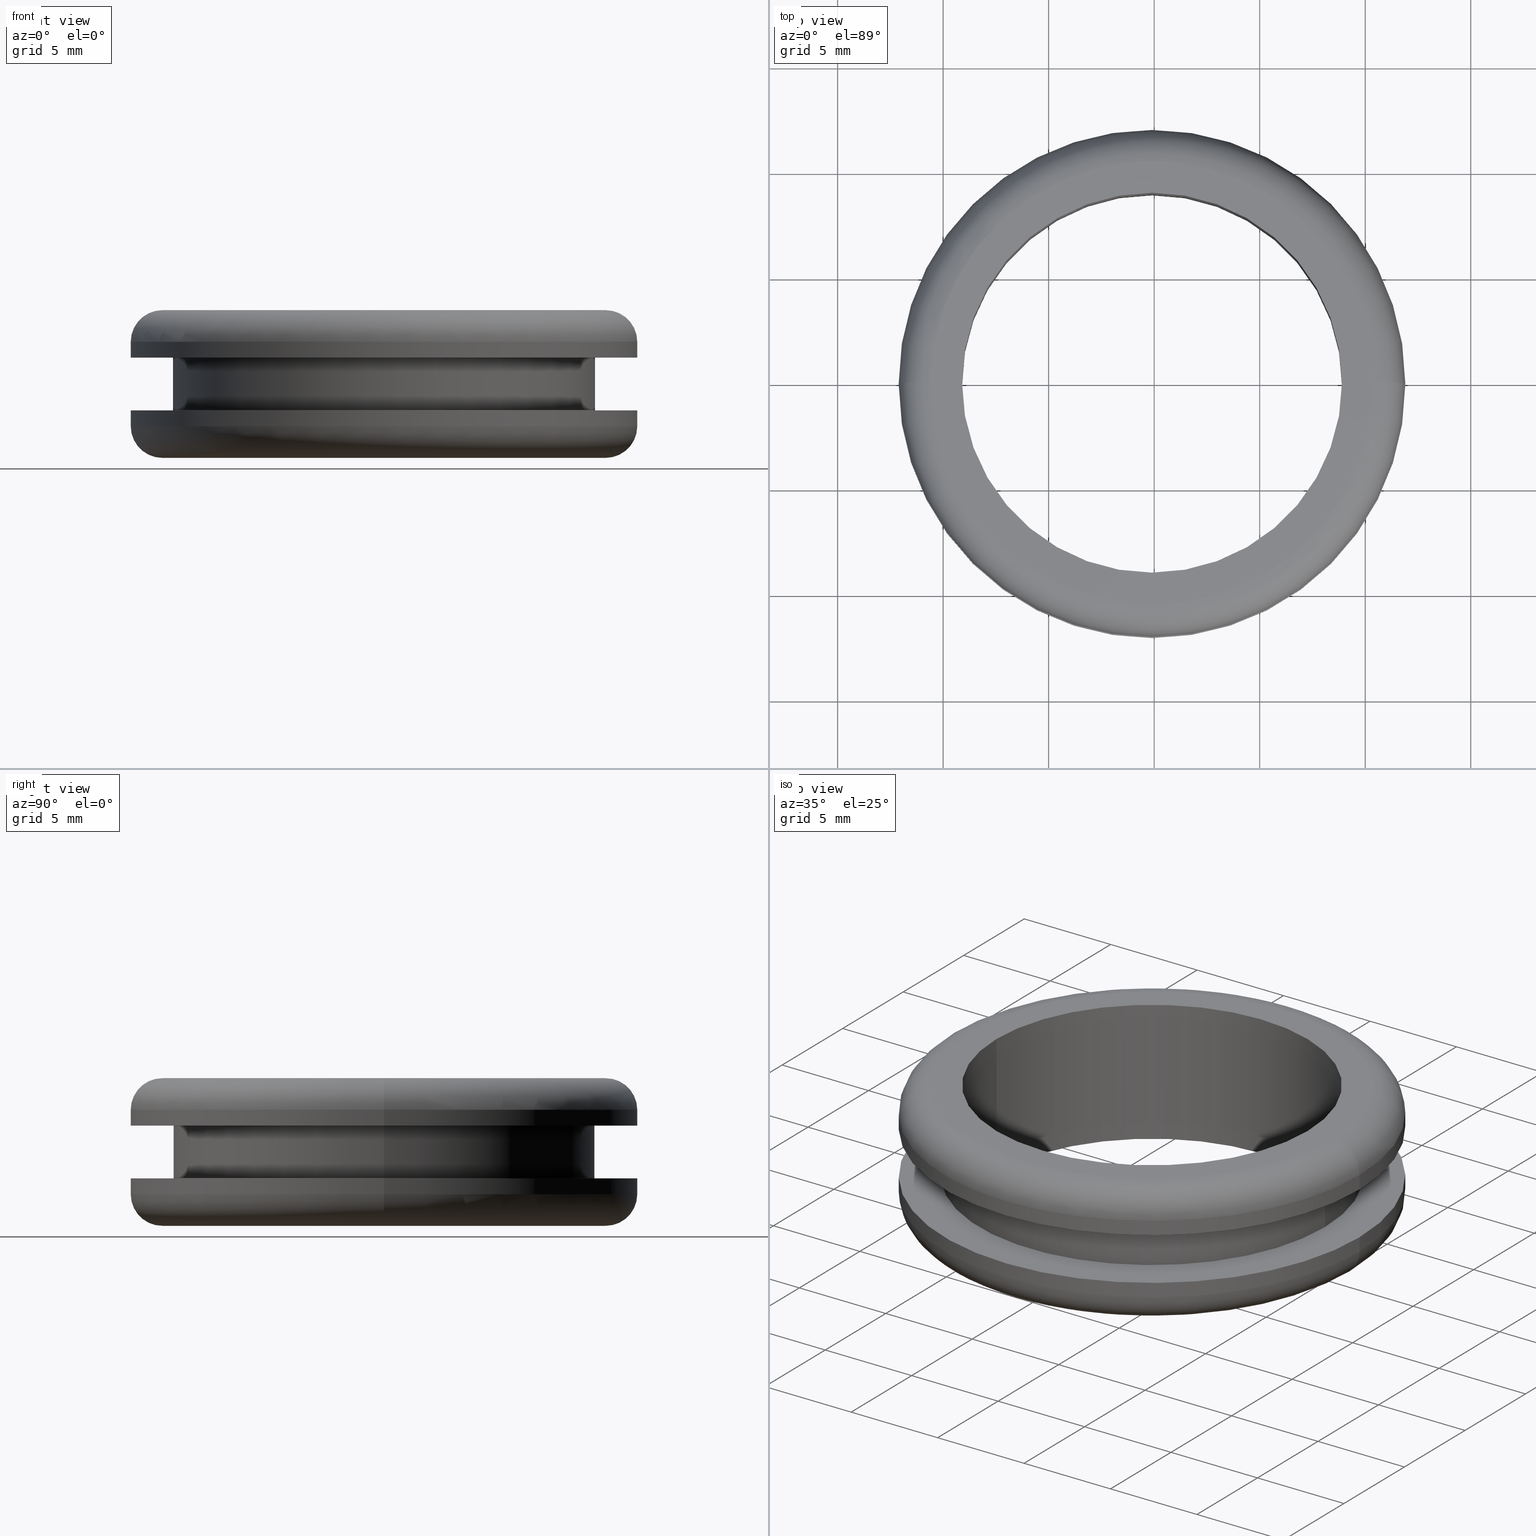
[diagram: canonical four-view strip — front | top / right | iso, engineering-drawing reading convention]
A machine part, canonical four-view strip (front | top / right | iso — engineering-drawing reading convention). The complete STEP part file that produces these views, byte-faithful:
ISO-10303-21;
HEADER;
FILE_DESCRIPTION (( 'STEP AP214' ),
    '1' );
FILE_NAME ('TM_346_1.STEP',
    '2018-06-13T02:32:34',
    ( '' ),
    ( '' ),
    'SwSTEP 2.0',
    'SolidWorks 2015',
    '' );
FILE_SCHEMA (( 'AUTOMOTIVE_DESIGN' ));
ENDSEC;

DATA;
#1 = CARTESIAN_POINT ( 'NONE',  ( 104.8968217177672100, 0.0000000000000000000, 0.0000000000000000000 ) ) ;
#2 = CARTESIAN_POINT ( 'NONE',  ( 95.89682171775730500, 0.0000000000000000000, 141.8594493936724100 ) ) ;
#3 = CARTESIAN_POINT ( 'NONE',  ( 104.8968217177672100, 0.0000000000000000000, 0.0000000000000000000 ) ) ;
#4 = CIRCLE ( 'NONE', #65, 1.500000000000001300 ) ;
#5 = DIRECTION ( 'NONE',  ( 0.0000000000000000000, 0.0000000000000000000, -1.000000000000000000 ) ) ;
#6 = VERTEX_POINT ( 'NONE', #177 ) ;
#7 = DIRECTION ( 'NONE',  ( 0.0000000000000000000, 0.0000000000000000000, -1.000000000000000000 ) ) ;
#8 =( GEOMETRIC_REPRESENTATION_CONTEXT ( 3 ) GLOBAL_UNCERTAINTY_ASSIGNED_CONTEXT ( ( #433 ) ) GLOBAL_UNIT_ASSIGNED_CONTEXT ( ( #41, #297, #84 ) ) REPRESENTATION_CONTEXT ( 'NONE', 'WORKASPACE' ) );
#9 = DIRECTION ( 'NONE',  ( 0.0000000000000000000, 0.0000000000000000000, -1.000000000000000000 ) ) ;
#10 = CARTESIAN_POINT ( 'NONE',  ( 104.8968217177672100, 0.0000000000000000000, 147.3594493936724100 ) ) ;
#11 = VECTOR ( 'NONE', #386, 1000.000000000000000 ) ;
#12 = VECTOR ( 'NONE', #241, 1000.000000000000000 ) ;
#13 = DIRECTION ( 'NONE',  ( -1.000000000000000000, 0.0000000000000000000, 0.0000000000000000000 ) ) ;
#14 = DIRECTION ( 'NONE',  ( -1.000000000000000000, 0.0000000000000000000, 0.0000000000000000000 ) ) ;
#15 = VERTEX_POINT ( 'NONE', #42 ) ;
#16 = CIRCLE ( 'NONE', #448, 12.00000000000990500 ) ;
#17 = AXIS2_PLACEMENT_3D ( 'NONE', #190, #157, #387 ) ;
#18 = VERTEX_POINT ( 'NONE', #193 ) ;
#19 = PLANE ( 'NONE',  #38 ) ;
#20 = DIRECTION ( 'NONE',  ( -1.000000000000000000, 0.0000000000000000000, 0.0000000000000000000 ) ) ;
#21 = EDGE_CURVE ( 'NONE', #343, #465, #197, .T. ) ;
#22 = EDGE_CURVE ( 'NONE', #53, #369, #105, .T. ) ;
#23 = CARTESIAN_POINT ( 'NONE',  ( 115.3968217177771200, 1.285879139105933300E-015, 147.3594493936724100 ) ) ;
#24 = VERTEX_POINT ( 'NONE', #311 ) ;
#25 = CIRCLE ( 'NONE', #333, 12.00000000000990500 ) ;
#26 = CYLINDRICAL_SURFACE ( 'NONE', #347, 12.00000000000990500 ) ;
#27 = ORIENTED_EDGE ( 'NONE', *, *, #22, .T. ) ;
#28 = AXIS2_PLACEMENT_3D ( 'NONE', #286, #278, #73 ) ;
#29 = EDGE_LOOP ( 'NONE', ( #378, #435, #438, #322 ) ) ;
#30 = ORIENTED_EDGE ( 'NONE', *, *, #281, .F. ) ;
#31 = DIRECTION ( 'NONE',  ( 0.0000000000000000000, 0.0000000000000000000, -1.000000000000000000 ) ) ;
#32 = ADVANCED_FACE ( 'NONE', ( #282 ), #472, .T. ) ;
#33 = DIRECTION ( 'NONE',  ( -1.000000000000000000, 0.0000000000000000000, 0.0000000000000000000 ) ) ;
#34 = CYLINDRICAL_SURFACE ( 'NONE', #236, 12.00000000000990500 ) ;
#35 = DIRECTION ( 'NONE',  ( 0.0000000000000000000, 0.0000000000000000000, -1.000000000000000000 ) ) ;
#36 = ORIENTED_EDGE ( 'NONE', *, *, #184, .T. ) ;
#37 = FILL_AREA_STYLE_COLOUR ( '', #173 ) ;
#38 = AXIS2_PLACEMENT_3D ( 'NONE', #458, #427, #181 ) ;
#39 = CARTESIAN_POINT ( 'NONE',  ( 116.8968217177771200, 1.469576158978035600E-015, 144.1094493936956000 ) ) ;
#40 = CARTESIAN_POINT ( 'NONE',  ( 94.89682171775730500, 0.0000000000000000000, 146.6094493936956000 ) ) ;
#41 =( LENGTH_UNIT ( ) NAMED_UNIT ( * ) SI_UNIT ( .MILLI., .METRE. ) );
#42 = CARTESIAN_POINT ( 'NONE',  ( 113.8968217177771200, 1.102182119233829800E-015, 141.8594493936724100 ) ) ;
#43 = DIRECTION ( 'NONE',  ( -1.000000000000000000, 0.0000000000000000000, 0.0000000000000000000 ) ) ;
#44 = ORIENTED_EDGE ( 'NONE', *, *, #95, .F. ) ;
#45 = EDGE_CURVE ( 'NONE', #411, #86, #186, .T. ) ;
#46 = EDGE_CURVE ( 'NONE', #411, #18, #302, .T. ) ;
#47 = CARTESIAN_POINT ( 'NONE',  ( 104.8968217177672100, 0.0000000000000000000, 147.3594493936724100 ) ) ;
#48 = APPLICATION_CONTEXT ( 'automotive_design' ) ;
#49 = DIRECTION ( 'NONE',  ( -1.000000000000000000, 0.0000000000000000000, 0.0000000000000000000 ) ) ;
#50 = EDGE_LOOP ( 'NONE', ( #212, #229 ) ) ;
#51 = DIRECTION ( 'NONE',  ( 0.0000000000000000000, 0.0000000000000000000, -1.000000000000000000 ) ) ;
#52 = VECTOR ( 'NONE', #61, 1000.000000000000000 ) ;
#53 = VERTEX_POINT ( 'NONE', #40 ) ;
#54 =( NAMED_UNIT ( * ) SI_UNIT ( $, .STERADIAN. ) SOLID_ANGLE_UNIT ( ) );
#55 = CARTESIAN_POINT ( 'NONE',  ( 113.8968217177772000, 0.0000000000000000000, 148.8594493936722100 ) ) ;
#56 = DIRECTION ( 'NONE',  ( -1.000000000000000000, -1.224646799147352000E-016, 0.0000000000000000000 ) ) ;
#57 = AXIS2_PLACEMENT_3D ( 'NONE', #423, #340, #87 ) ;
#58 = CARTESIAN_POINT ( 'NONE',  ( 104.8968217177672100, 0.0000000000000000000, 147.3594493936724100 ) ) ;
#59 = VERTEX_POINT ( 'NONE', #306 ) ;
#60 = CARTESIAN_POINT ( 'NONE',  ( 104.8968217177672100, 0.0000000000000000000, 141.8594493936722100 ) ) ;
#61 = DIRECTION ( 'NONE',  ( 0.0000000000000000000, 0.0000000000000000000, -1.000000000000000000 ) ) ;
#62 = FACE_OUTER_BOUND ( 'NONE', #270, .T. ) ;
#63 = ORIENTED_EDGE ( 'NONE', *, *, #69, .F. ) ;
#64 = CIRCLE ( 'NONE', #252, 10.50000000000990500 ) ;
#65 = AXIS2_PLACEMENT_3D ( 'NONE', #223, #457, #345 ) ;
#66 = CLOSED_SHELL ( 'NONE', ( #243, #109, #32, #170, #145, #78, #104, #326, #72, #475, #287, #441, #410, #208, #409, #365 ) ) ;
#67 = ORIENTED_EDGE ( 'NONE', *, *, #299, .F. ) ;
#68 = DIRECTION ( 'NONE',  ( 0.0000000000000000000, 0.0000000000000000000, -1.000000000000000000 ) ) ;
#69 = EDGE_CURVE ( 'NONE', #343, #15, #98, .T. ) ;
#70 = EDGE_CURVE ( 'NONE', #391, #128, #273, .T. ) ;
#71 = CARTESIAN_POINT ( 'NONE',  ( 92.89682171775730500, 0.0000000000000000000, 147.3594493936724100 ) ) ;
#72 = ADVANCED_FACE ( 'NONE', ( #382 ), #464, .T. ) ;
#73 = DIRECTION ( 'NONE',  ( -1.000000000000000000, 0.0000000000000000000, 0.0000000000000000000 ) ) ;
#74 = CIRCLE ( 'NONE', #232, 10.50000000001000100 ) ;
#75 = ORIENTED_EDGE ( 'NONE', *, *, #238, .F. ) ;
#76 = PRESENTATION_STYLE_ASSIGNMENT (( #375 ) ) ;
#77 = DIRECTION ( 'NONE',  ( 0.0000000000000000000, 0.0000000000000000000, -1.000000000000000000 ) ) ;
#78 = ADVANCED_FACE ( 'NONE', ( #88 ), #454, .F. ) ;
#79 = CARTESIAN_POINT ( 'NONE',  ( 114.8968217177772000, 0.0000000000000000000, 144.1094493936956000 ) ) ;
#80 = DIRECTION ( 'NONE',  ( 0.0000000000000000000, 0.0000000000000000000, -1.000000000000000000 ) ) ;
#81 = DIRECTION ( 'NONE',  ( -1.000000000000000000, 0.0000000000000000000, 0.0000000000000000000 ) ) ;
#82 = ORIENTED_EDGE ( 'NONE', *, *, #468, .F. ) ;
#83 = DIRECTION ( 'NONE',  ( -1.000000000000000000, 0.0000000000000000000, 0.0000000000000000000 ) ) ;
#84 =( NAMED_UNIT ( * ) SI_UNIT ( $, .STERADIAN. ) SOLID_ANGLE_UNIT ( ) );
#85 = PRODUCT_DEFINITION ( 'UNKNOWN', '', #102, #151 ) ;
#86 = VERTEX_POINT ( 'NONE', #259 ) ;
#87 = DIRECTION ( 'NONE',  ( 1.000000000000000000, 0.0000000000000000000, 0.0000000000000000000 ) ) ;
#88 = FACE_OUTER_BOUND ( 'NONE', #277, .T. ) ;
#89 = EDGE_LOOP ( 'NONE', ( #118, #274, #27, #75 ) ) ;
#90 = CIRCLE ( 'NONE', #393, 10.00000000000990300 ) ;
#91 = CARTESIAN_POINT ( 'NONE',  ( 94.89682171775730500, 0.0000000000000000000, 144.1094493936956000 ) ) ;
#92 =( NAMED_UNIT ( * ) PLANE_ANGLE_UNIT ( ) SI_UNIT ( $, .RADIAN. ) );
#93 = CARTESIAN_POINT ( 'NONE',  ( 104.8968217177672100, 0.0000000000000000000, 148.8594493936722100 ) ) ;
#94 = ORIENTED_EDGE ( 'NONE', *, *, #317, .F. ) ;
#95 = EDGE_CURVE ( 'NONE', #296, #106, #74, .T. ) ;
#96 = AXIS2_PLACEMENT_3D ( 'NONE', #392, #132, #350 ) ;
#97 = CARTESIAN_POINT ( 'NONE',  ( 94.39682171775720600, 0.0000000000000000000, 148.8594493936722100 ) ) ;
#98 = LINE ( 'NONE', #195, #171 ) ;
#99 = ORIENTED_EDGE ( 'NONE', *, *, #117, .F. ) ;
#100 = LINE ( 'NONE', #348, #179 ) ;
#101 = ORIENTED_EDGE ( 'NONE', *, *, #215, .F. ) ;
#102 = PRODUCT_DEFINITION_FORMATION_WITH_SPECIFIED_SOURCE ( 'ANY', '', #131, .NOT_KNOWN. ) ;
#103 = CARTESIAN_POINT ( 'NONE',  ( 104.8968217177672100, 0.0000000000000000000, 146.6094493936956000 ) ) ;
#104 = ADVANCED_FACE ( 'NONE', ( #164 ), #154, .F. ) ;
#105 = LINE ( 'NONE', #182, #396 ) ;
#106 = VERTEX_POINT ( 'NONE', #338 ) ;
#107 = FACE_OUTER_BOUND ( 'NONE', #89, .T. ) ;
#108 = CARTESIAN_POINT ( 'NONE',  ( 104.8968217177672100, 0.0000000000000000000, 146.6094493936956000 ) ) ;
#109 = ADVANCED_FACE ( 'NONE', ( #62 ), #442, .T. ) ;
#110 = DIRECTION ( 'NONE',  ( 0.0000000000000000000, 0.0000000000000000000, -1.000000000000000000 ) ) ;
#111 = PLANE ( 'NONE',  #359 ) ;
#112 = DIRECTION ( 'NONE',  ( -1.000000000000000000, 0.0000000000000000000, 0.0000000000000000000 ) ) ;
#113 = CIRCLE ( 'NONE', #17, 12.00000000000990500 ) ;
#114 = ORIENTED_EDGE ( 'NONE', *, *, #46, .T. ) ;
#115 = SURFACE_SIDE_STYLE ('',( #262 ) ) ;
#116 = AXIS2_PLACEMENT_3D ( 'NONE', #447, #176, #412 ) ;
#117 = EDGE_CURVE ( 'NONE', #15, #358, #354, .T. ) ;
#118 = ORIENTED_EDGE ( 'NONE', *, *, #430, .F. ) ;
#119 = AXIS2_PLACEMENT_3D ( 'NONE', #60, #263, #13 ) ;
#120 = ORIENTED_EDGE ( 'NONE', *, *, #69, .T. ) ;
#121 = CIRCLE ( 'NONE', #437, 12.00000000000990500 ) ;
#122 = CARTESIAN_POINT ( 'NONE',  ( 104.8968217177672100, 0.0000000000000000000, 0.0000000000000000000 ) ) ;
#123 = DIRECTION ( 'NONE',  ( -1.000000000000000000, 0.0000000000000000000, 0.0000000000000000000 ) ) ;
#124 = CARTESIAN_POINT ( 'NONE',  ( 92.89682171775730500, 0.0000000000000000000, 0.0000000000000000000 ) ) ;
#125 = DIRECTION ( 'NONE',  ( -1.000000000000000000, 0.0000000000000000000, 0.0000000000000000000 ) ) ;
#126 = SURFACE_STYLE_USAGE ( .BOTH. , #349 ) ;
#127 = CIRCLE ( 'NONE', #320, 12.00000000000990500 ) ;
#128 = VERTEX_POINT ( 'NONE', #255 ) ;
#129 = DIRECTION ( 'NONE',  ( -0.0000000000000000000, -1.000000000000000000, -0.0000000000000000000 ) ) ;
#130 = DIRECTION ( 'NONE',  ( -1.000000000000000000, 0.0000000000000000000, 0.0000000000000000000 ) ) ;
#131 = PRODUCT ( 'TM_346_1', 'TM_346_1', '', ( #305 ) ) ;
#132 = DIRECTION ( 'NONE',  ( 0.0000000000000000000, 0.0000000000000000000, -1.000000000000000000 ) ) ;
#133 = PRODUCT_RELATED_PRODUCT_CATEGORY ( 'part', '', ( #131 ) ) ;
#134 = DIRECTION ( 'NONE',  ( -0.0000000000000000000, -1.000000000000000000, -0.0000000000000000000 ) ) ;
#135 = EDGE_LOOP ( 'NONE', ( #309, #324 ) ) ;
#136 = CIRCLE ( 'NONE', #421, 10.00000000000990300 ) ;
#137 = SURFACE_STYLE_FILL_AREA ( #406 ) ;
#138 = EDGE_LOOP ( 'NONE', ( #329, #161, #402, #455 ) ) ;
#139 = AXIS2_PLACEMENT_3D ( 'NONE', #55, #379, #298 ) ;
#140 = ORIENTED_EDGE ( 'NONE', *, *, #468, .T. ) ;
#141 = CARTESIAN_POINT ( 'NONE',  ( 114.8968217177771200, 1.224646799148565500E-015, 0.0000000000000000000 ) ) ;
#142 = EDGE_CURVE ( 'NONE', #106, #18, #244, .T. ) ;
#143 = AXIS2_PLACEMENT_3D ( 'NONE', #271, #460, #130 ) ;
#144 = CARTESIAN_POINT ( 'NONE',  ( 95.89682171775730500, 0.0000000000000000000, 148.8594493936722100 ) ) ;
#145 = ADVANCED_FACE ( 'NONE', ( #260 ), #342, .T. ) ;
#146 = CIRCLE ( 'NONE', #366, 1.500000000000001300 ) ;
#147 = EDGE_LOOP ( 'NONE', ( #160, #292 ) ) ;
#148 =( LENGTH_UNIT ( ) NAMED_UNIT ( * ) SI_UNIT ( .MILLI., .METRE. ) );
#149 = CARTESIAN_POINT ( 'NONE',  ( 104.8968217177672100, 0.0000000000000000000, 143.3594493936722100 ) ) ;
#150 = EDGE_LOOP ( 'NONE', ( #140, #316 ) ) ;
#151 = PRODUCT_DEFINITION_CONTEXT ( 'detailed design', #48, 'design' ) ;
#152 = CARTESIAN_POINT ( 'NONE',  ( 104.8968217177672100, 0.0000000000000000000, 0.0000000000000000000 ) ) ;
#153 = DIRECTION ( 'NONE',  ( 0.0000000000000000000, 0.0000000000000000000, -1.000000000000000000 ) ) ;
#154 = CYLINDRICAL_SURFACE ( 'NONE', #318, 9.000000000009903200 ) ;
#155 = ORIENTED_EDGE ( 'NONE', *, *, #317, .T. ) ;
#156 = DIRECTION ( 'NONE',  ( 0.0000000000000000000, 0.0000000000000000000, -1.000000000000000000 ) ) ;
#157 = DIRECTION ( 'NONE',  ( 0.0000000000000000000, 0.0000000000000000000, -1.000000000000000000 ) ) ;
#158 = APPLICATION_CONTEXT ( 'automotive_design' ) ;
#159 = AXIS2_PLACEMENT_3D ( 'NONE', #371, #110, #288 ) ;
#160 = ORIENTED_EDGE ( 'NONE', *, *, #452, .T. ) ;
#161 = ORIENTED_EDGE ( 'NONE', *, *, #299, .T. ) ;
#162 = EDGE_CURVE ( 'NONE', #465, #358, #368, .T. ) ;
#163 = AXIS2_PLACEMENT_3D ( 'NONE', #293, #264, #83 ) ;
#164 = FACE_OUTER_BOUND ( 'NONE', #429, .T. ) ;
#165 = ORIENTED_EDGE ( 'NONE', *, *, #168, .T. ) ;
#166 = ADVANCED_BREP_SHAPE_REPRESENTATION ( 'TM_346_1', ( #477, #57 ), #8 ) ;
#167 = ORIENTED_EDGE ( 'NONE', *, *, #162, .T. ) ;
#168 = EDGE_CURVE ( 'NONE', #6, #391, #146, .T. ) ;
#169 = DIRECTION ( 'NONE',  ( -1.000000000000000000, 0.0000000000000000000, 0.0000000000000000000 ) ) ;
#170 = ADVANCED_FACE ( 'NONE', ( #434 ), #34, .T. ) ;
#171 = VECTOR ( 'NONE', #153, 1000.000000000000000 ) ;
#172 = ORIENTED_EDGE ( 'NONE', *, *, #272, .T. ) ;
#173 = COLOUR_RGB ( '',0.7921568627450980000, 0.8196078431372548800, 0.9333333333333333500 ) ;
#174 = CARTESIAN_POINT ( 'NONE',  ( 104.8968217177672100, 0.0000000000000000000, 143.3594493936722100 ) ) ;
#175 = DIRECTION ( 'NONE',  ( 0.0000000000000000000, 0.0000000000000000000, -1.000000000000000000 ) ) ;
#176 = DIRECTION ( 'NONE',  ( 0.0000000000000000000, 0.0000000000000000000, -1.000000000000000000 ) ) ;
#177 = CARTESIAN_POINT ( 'NONE',  ( 92.89682171775730500, 0.0000000000000000000, 143.3594493936722100 ) ) ;
#178 =( NAMED_UNIT ( * ) SI_UNIT ( $, .STERADIAN. ) SOLID_ANGLE_UNIT ( ) );
#179 = VECTOR ( 'NONE', #267, 1000.000000000000000 ) ;
#180 = VERTEX_POINT ( 'NONE', #228 ) ;
#181 = DIRECTION ( 'NONE',  ( 1.000000000000000000, 0.0000000000000000000, 0.0000000000000000000 ) ) ;
#182 = CARTESIAN_POINT ( 'NONE',  ( 94.89682171775730500, 0.0000000000000000000, 0.0000000000000000000 ) ) ;
#183 = DIRECTION ( 'NONE',  ( -1.000000000000000000, 0.0000000000000000000, 0.0000000000000000000 ) ) ;
#184 = EDGE_CURVE ( 'NONE', #296, #411, #233, .T. ) ;
#185 = AXIS2_PLACEMENT_3D ( 'NONE', #428, #156, #341 ) ;
#186 = LINE ( 'NONE', #124, #11 ) ;
#187 = ORIENTED_EDGE ( 'NONE', *, *, #469, .T. ) ;
#188 = LINE ( 'NONE', #141, #12 ) ;
#189 = DIRECTION ( 'NONE',  ( 0.0000000000000000000, 0.0000000000000000000, -1.000000000000000000 ) ) ;
#190 = CARTESIAN_POINT ( 'NONE',  ( 104.8968217177672100, 0.0000000000000000000, 144.1094493936956000 ) ) ;
#191 = FACE_BOUND ( 'NONE', #376, .T. ) ;
#192 = ORIENTED_EDGE ( 'NONE', *, *, #405, .F. ) ;
#193 = CARTESIAN_POINT ( 'NONE',  ( 116.8968217177771200, 1.469576158978036200E-015, 147.3594493936724100 ) ) ;
#194 = EDGE_CURVE ( 'NONE', #261, #53, #136, .T. ) ;
#195 = CARTESIAN_POINT ( 'NONE',  ( 113.8968217177771200, 1.102182119233830200E-015, 0.0000000000000000000 ) ) ;
#196 = CARTESIAN_POINT ( 'NONE',  ( 94.39682171775730500, 0.0000000000000000000, 143.3594493936722100 ) ) ;
#197 = CIRCLE ( 'NONE', #96, 9.000000000009903200 ) ;
#198 = EDGE_LOOP ( 'NONE', ( #201, #419, #351, #222 ) ) ;
#199 = TOROIDAL_SURFACE ( 'NONE', #312, 10.50000000000990100, 1.500000000000000000 ) ;
#200 = FACE_OUTER_BOUND ( 'NONE', #150, .T. ) ;
#201 = ORIENTED_EDGE ( 'NONE', *, *, #397, .F. ) ;
#202 = AXIS2_PLACEMENT_3D ( 'NONE', #108, #77, #327 ) ;
#203 = DIRECTION ( 'NONE',  ( -1.000000000000000000, 0.0000000000000000000, 0.0000000000000000000 ) ) ;
#204 = ORIENTED_EDGE ( 'NONE', *, *, #231, .F. ) ;
#205 = ORIENTED_EDGE ( 'NONE', *, *, #206, .F. ) ;
#206 = EDGE_CURVE ( 'NONE', #465, #343, #220, .T. ) ;
#207 = AXIS2_PLACEMENT_3D ( 'NONE', #58, #51, #219 ) ;
#208 = ADVANCED_FACE ( 'NONE', ( #424 ), #26, .T. ) ;
#209 = DIRECTION ( 'NONE',  ( 0.0000000000000000000, 0.0000000000000000000, -1.000000000000000000 ) ) ;
#210 = CARTESIAN_POINT ( 'NONE',  ( 104.8968217177672100, 0.0000000000000000000, 148.8594493936722100 ) ) ;
#211 = CIRCLE ( 'NONE', #373, 10.00000000000990300 ) ;
#212 = ORIENTED_EDGE ( 'NONE', *, *, #70, .T. ) ;
#213 = CARTESIAN_POINT ( 'NONE',  ( 113.8968217177771200, 1.102182119233829800E-015, 148.8594493936722100 ) ) ;
#214 = DIRECTION ( 'NONE',  ( 0.0000000000000000000, 0.0000000000000000000, -1.000000000000000000 ) ) ;
#215 = EDGE_CURVE ( 'NONE', #24, #279, #127, .T. ) ;
#216 = VERTEX_POINT ( 'NONE', #314 ) ;
#217 = FACE_BOUND ( 'NONE', #147, .T. ) ;
#218 = CARTESIAN_POINT ( 'NONE',  ( 104.8968217177672100, 0.0000000000000000000, 148.8594493936722100 ) ) ;
#219 = DIRECTION ( 'NONE',  ( -1.000000000000000000, 0.0000000000000000000, 0.0000000000000000000 ) ) ;
#220 = CIRCLE ( 'NONE', #266, 9.000000000009903200 ) ;
#221 = COLOUR_RGB ( '',0.7921568627450980000, 0.8196078431372548800, 0.9333333333333333500 ) ;
#222 = ORIENTED_EDGE ( 'NONE', *, *, #337, .F. ) ;
#223 = CARTESIAN_POINT ( 'NONE',  ( 115.3968217177771200, 1.285879139105933300E-015, 143.3594493936722100 ) ) ;
#224 = DIRECTION ( 'NONE',  ( -1.224646799147353200E-016, 1.000000000000000000, 0.0000000000000000000 ) ) ;
#225 = AXIS2_PLACEMENT_3D ( 'NONE', #372, #242, #476 ) ;
#226 = DIRECTION ( 'NONE',  ( -1.000000000000000000, 0.0000000000000000000, 0.0000000000000000000 ) ) ;
#227 = EDGE_LOOP ( 'NONE', ( #101, #67 ) ) ;
#228 = CARTESIAN_POINT ( 'NONE',  ( 116.8968217177771200, 1.469576158978035600E-015, 143.3594493936722100 ) ) ;
#229 = ORIENTED_EDGE ( 'NONE', *, *, #405, .T. ) ;
#230 = CARTESIAN_POINT ( 'NONE',  ( 104.8968217177672100, 0.0000000000000000000, 0.0000000000000000000 ) ) ;
#231 = EDGE_CURVE ( 'NONE', #358, #15, #319, .T. ) ;
#232 = AXIS2_PLACEMENT_3D ( 'NONE', #218, #189, #420 ) ;
#233 = CIRCLE ( 'NONE', #439, 1.500000000000001300 ) ;
#234 = EDGE_LOOP ( 'NONE', ( #114, #268, #82, #284 ) ) ;
#235 = FACE_BOUND ( 'NONE', #404, .T. ) ;
#236 = AXIS2_PLACEMENT_3D ( 'NONE', #230, #395, #463 ) ;
#237 = EDGE_LOOP ( 'NONE', ( #187, #155, #449, #246 ) ) ;
#238 = EDGE_CURVE ( 'NONE', #216, #369, #211, .T. ) ;
#239 = DIRECTION ( 'NONE',  ( -1.000000000000000000, 0.0000000000000000000, 0.0000000000000000000 ) ) ;
#240 = CARTESIAN_POINT ( 'NONE',  ( 104.8968217177672100, 0.0000000000000000000, 144.1094493936956000 ) ) ;
#241 = DIRECTION ( 'NONE',  ( 0.0000000000000000000, 0.0000000000000000000, -1.000000000000000000 ) ) ;
#242 = DIRECTION ( 'NONE',  ( 0.0000000000000000000, 0.0000000000000000000, 1.000000000000000000 ) ) ;
#243 = ADVANCED_FACE ( 'NONE', ( #328 ), #308, .T. ) ;
#244 = CIRCLE ( 'NONE', #283, 1.500000000000001300 ) ;
#245 = UNCERTAINTY_MEASURE_WITH_UNIT (LENGTH_MEASURE( 1.000000000000000100E-005 ), #265, 'distance_accuracy_value', 'NONE');
#246 = ORIENTED_EDGE ( 'NONE', *, *, #168, .F. ) ;
#247 = FACE_OUTER_BOUND ( 'NONE', #50, .T. ) ;
#248 = DIRECTION ( 'NONE',  ( 0.0000000000000000000, 0.0000000000000000000, -1.000000000000000000 ) ) ;
#249 = DIRECTION ( 'NONE',  ( 0.0000000000000000000, 0.0000000000000000000, -1.000000000000000000 ) ) ;
#250 = PLANE ( 'NONE',  #225 ) ;
#251 = DIRECTION ( 'NONE',  ( -1.000000000000000000, 0.0000000000000000000, 0.0000000000000000000 ) ) ;
#252 = AXIS2_PLACEMENT_3D ( 'NONE', #478, #248, #33 ) ;
#253 = ORIENTED_EDGE ( 'NONE', *, *, #231, .T. ) ;
#254 = EDGE_LOOP ( 'NONE', ( #335, #414, #36, #30 ) ) ;
#255 = CARTESIAN_POINT ( 'NONE',  ( 115.3968217177771200, 1.377727649041984500E-015, 141.8594493936722100 ) ) ;
#256 = EDGE_CURVE ( 'NONE', #106, #296, #413, .T. ) ;
#257 = AXIS2_PLACEMENT_3D ( 'NONE', #3, #385, #456 ) ;
#258 = APPLICATION_PROTOCOL_DEFINITION ( 'draft international standard', 'automotive_design', 1998, #48 ) ;
#259 = CARTESIAN_POINT ( 'NONE',  ( 92.89682171775730500, 0.0000000000000000000, 146.6094493936956000 ) ) ;
#260 = FACE_OUTER_BOUND ( 'NONE', #29, .T. ) ;
#261 = VERTEX_POINT ( 'NONE', #374 ) ;
#262 = SURFACE_STYLE_FILL_AREA ( #331 ) ;
#263 = DIRECTION ( 'NONE',  ( 0.0000000000000000000, 0.0000000000000000000, -1.000000000000000000 ) ) ;
#264 = DIRECTION ( 'NONE',  ( 0.0000000000000000000, 0.0000000000000000000, -1.000000000000000000 ) ) ;
#265 =( LENGTH_UNIT ( ) NAMED_UNIT ( * ) SI_UNIT ( .MILLI., .METRE. ) );
#266 = AXIS2_PLACEMENT_3D ( 'NONE', #210, #313, #226 ) ;
#267 = DIRECTION ( 'NONE',  ( 0.0000000000000000000, 0.0000000000000000000, -1.000000000000000000 ) ) ;
#268 = ORIENTED_EDGE ( 'NONE', *, *, #397, .T. ) ;
#269 = CIRCLE ( 'NONE', #202, 10.00000000000990300 ) ;
#270 = EDGE_LOOP ( 'NONE', ( #451, #172, #360, #408 ) ) ;
#271 = CARTESIAN_POINT ( 'NONE',  ( 104.8968217177672100, 0.0000000000000000000, 147.3594493936724100 ) ) ;
#272 = EDGE_CURVE ( 'NONE', #279, #180, #403, .T. ) ;
#273 = CIRCLE ( 'NONE', #119, 10.50000000000990500 ) ;
#274 = ORIENTED_EDGE ( 'NONE', *, *, #194, .T. ) ;
#275 = STYLED_ITEM ( 'NONE', ( #76 ), #477 ) ;
#276 = FACE_OUTER_BOUND ( 'NONE', #303, .T. ) ;
#277 = EDGE_LOOP ( 'NONE', ( #383, #120, #407, #473 ) ) ;
#278 = DIRECTION ( 'NONE',  ( 0.0000000000000000000, 0.0000000000000000000, -1.000000000000000000 ) ) ;
#279 = VERTEX_POINT ( 'NONE', #39 ) ;
#280 = CARTESIAN_POINT ( 'NONE',  ( 104.8968217177672100, 0.0000000000000000000, 0.0000000000000000000 ) ) ;
#281 = EDGE_CURVE ( 'NONE', #18, #411, #16, .T. ) ;
#282 = FACE_OUTER_BOUND ( 'NONE', #461, .T. ) ;
#283 = AXIS2_PLACEMENT_3D ( 'NONE', #23, #224, #56 ) ;
#284 = ORIENTED_EDGE ( 'NONE', *, *, #45, .F. ) ;
#285 = FACE_OUTER_BOUND ( 'NONE', #227, .T. ) ;
#286 = CARTESIAN_POINT ( 'NONE',  ( 104.8968217177672100, 0.0000000000000000000, 0.0000000000000000000 ) ) ;
#287 = ADVANCED_FACE ( 'NONE', ( #191, #200 ), #19, .F. ) ;
#288 = DIRECTION ( 'NONE',  ( -1.000000000000000000, 0.0000000000000000000, 0.0000000000000000000 ) ) ;
#289 = DIRECTION ( 'NONE',  ( -1.000000000000000000, 0.0000000000000000000, 0.0000000000000000000 ) ) ;
#290 = AXIS2_PLACEMENT_3D ( 'NONE', #334, #214, #43 ) ;
#291 = CARTESIAN_POINT ( 'NONE',  ( 104.8968217177672100, 0.0000000000000000000, 144.1094493936956000 ) ) ;
#292 = ORIENTED_EDGE ( 'NONE', *, *, #238, .T. ) ;
#293 = CARTESIAN_POINT ( 'NONE',  ( 104.8968217177672100, 0.0000000000000000000, 0.0000000000000000000 ) ) ;
#294 = FILL_AREA_STYLE_COLOUR ( '', #221 ) ;
#295 = VECTOR ( 'NONE', #380, 1000.000000000000000 ) ;
#296 = VERTEX_POINT ( 'NONE', #97 ) ;
#297 =( NAMED_UNIT ( * ) PLANE_ANGLE_UNIT ( ) SI_UNIT ( $, .RADIAN. ) );
#298 = DIRECTION ( 'NONE',  ( -1.000000000000000000, 0.0000000000000000000, 0.0000000000000000000 ) ) ;
#299 = EDGE_CURVE ( 'NONE', #279, #24, #113, .T. ) ;
#300 = ORIENTED_EDGE ( 'NONE', *, *, #256, .F. ) ;
#301 = CARTESIAN_POINT ( 'NONE',  ( 104.8968217177672100, 0.0000000000000000000, 144.1094493936956000 ) ) ;
#302 = CIRCLE ( 'NONE', #143, 12.00000000000990500 ) ;
#303 = EDGE_LOOP ( 'NONE', ( #44, #300 ) ) ;
#304 = DIRECTION ( 'NONE',  ( 0.0000000000000000000, 0.0000000000000000000, -1.000000000000000000 ) ) ;
#305 = PRODUCT_CONTEXT ( 'NONE', #158, 'mechanical' ) ;
#306 = CARTESIAN_POINT ( 'NONE',  ( 116.8968217177771200, 1.469576158978035600E-015, 146.6094493936956000 ) ) ;
#307 = DIRECTION ( 'NONE',  ( 0.0000000000000000000, 0.0000000000000000000, -1.000000000000000000 ) ) ;
#308 = TOROIDAL_SURFACE ( 'NONE', #426, 10.50000000000990100, 1.500000000000000000 ) ;
#309 = ORIENTED_EDGE ( 'NONE', *, *, #206, .T. ) ;
#310 = PRESENTATION_LAYER_ASSIGNMENT (  '', '', ( #275 ) ) ;
#311 = CARTESIAN_POINT ( 'NONE',  ( 92.89682171775730500, 0.0000000000000000000, 144.1094493936956000 ) ) ;
#312 = AXIS2_PLACEMENT_3D ( 'NONE', #174, #445, #289 ) ;
#313 = DIRECTION ( 'NONE',  ( 0.0000000000000000000, 0.0000000000000000000, -1.000000000000000000 ) ) ;
#314 = CARTESIAN_POINT ( 'NONE',  ( 114.8968217177771200, 1.224646799148565100E-015, 144.1094493936956000 ) ) ;
#315 = ORIENTED_EDGE ( 'NONE', *, *, #381, .T. ) ;
#316 = ORIENTED_EDGE ( 'NONE', *, *, #337, .T. ) ;
#317 = EDGE_CURVE ( 'NONE', #180, #128, #4, .T. ) ;
#318 = AXIS2_PLACEMENT_3D ( 'NONE', #152, #336, #49 ) ;
#319 = CIRCLE ( 'NONE', #290, 9.000000000009903200 ) ;
#320 = AXIS2_PLACEMENT_3D ( 'NONE', #301, #418, #251 ) ;
#321 = PRESENTATION_STYLE_ASSIGNMENT (( #126 ) ) ;
#322 = ORIENTED_EDGE ( 'NONE', *, *, #184, .F. ) ;
#323 = EDGE_CURVE ( 'NONE', #24, #6, #100, .T. ) ;
#324 = ORIENTED_EDGE ( 'NONE', *, *, #21, .T. ) ;
#325 = CARTESIAN_POINT ( 'NONE',  ( 104.8968217177672100, 0.0000000000000000000, 143.3594493936722100 ) ) ;
#326 = ADVANCED_FACE ( 'NONE', ( #276, #389 ), #450, .F. ) ;
#327 = DIRECTION ( 'NONE',  ( -1.000000000000000000, 0.0000000000000000000, 0.0000000000000000000 ) ) ;
#328 = FACE_OUTER_BOUND ( 'NONE', #237, .T. ) ;
#329 = ORIENTED_EDGE ( 'NONE', *, *, #272, .F. ) ;
#330 = DIRECTION ( 'NONE',  ( -1.000000000000000000, 0.0000000000000000000, 0.0000000000000000000 ) ) ;
#331 = FILL_AREA_STYLE ('',( #37 ) ) ;
#332 = MECHANICAL_DESIGN_GEOMETRIC_PRESENTATION_REPRESENTATION (  '', ( #275 ), #357 ) ;
#333 = AXIS2_PLACEMENT_3D ( 'NONE', #103, #68, #81 ) ;
#334 = CARTESIAN_POINT ( 'NONE',  ( 104.8968217177672100, 0.0000000000000000000, 141.8594493936724100 ) ) ;
#335 = ORIENTED_EDGE ( 'NONE', *, *, #142, .F. ) ;
#336 = DIRECTION ( 'NONE',  ( 0.0000000000000000000, 0.0000000000000000000, -1.000000000000000000 ) ) ;
#337 = EDGE_CURVE ( 'NONE', #59, #86, #466, .T. ) ;
#338 = CARTESIAN_POINT ( 'NONE',  ( 115.3968217177772100, 1.377727649041991000E-015, 148.8594493936722100 ) ) ;
#339 = AXIS2_PLACEMENT_3D ( 'NONE', #122, #304, #123 ) ;
#340 = DIRECTION ( 'NONE',  ( 0.0000000000000000000, 0.0000000000000000000, 1.000000000000000000 ) ) ;
#341 = DIRECTION ( 'NONE',  ( -1.000000000000000000, 0.0000000000000000000, 0.0000000000000000000 ) ) ;
#342 = TOROIDAL_SURFACE ( 'NONE', #400, 10.50000000000990100, 1.500000000000000000 ) ;
#343 = VERTEX_POINT ( 'NONE', #213 ) ;
#344 = LINE ( 'NONE', #367, #444 ) ;
#345 = DIRECTION ( 'NONE',  ( -1.000000000000000000, -1.224646799147352000E-016, 0.0000000000000000000 ) ) ;
#346 = APPLICATION_PROTOCOL_DEFINITION ( 'draft international standard', 'automotive_design', 1998, #158 ) ;
#347 = AXIS2_PLACEMENT_3D ( 'NONE', #1, #35, #462 ) ;
#348 = CARTESIAN_POINT ( 'NONE',  ( 92.89682171775730500, 0.0000000000000000000, 0.0000000000000000000 ) ) ;
#349 = SURFACE_SIDE_STYLE ('',( #137 ) ) ;
#350 = DIRECTION ( 'NONE',  ( -1.000000000000000000, 0.0000000000000000000, 0.0000000000000000000 ) ) ;
#351 = ORIENTED_EDGE ( 'NONE', *, *, #45, .T. ) ;
#352 = EDGE_CURVE ( 'NONE', #180, #6, #377, .T. ) ;
#353 = DIRECTION ( 'NONE',  ( 0.0000000000000000000, 0.0000000000000000000, -1.000000000000000000 ) ) ;
#354 = CIRCLE ( 'NONE', #185, 9.000000000009903200 ) ;
#355 = ORIENTED_EDGE ( 'NONE', *, *, #381, .F. ) ;
#356 = UNCERTAINTY_MEASURE_WITH_UNIT (LENGTH_MEASURE( 1.000000000000000100E-005 ), #148, 'distance_accuracy_value', 'NONE');
#357 =( GEOMETRIC_REPRESENTATION_CONTEXT ( 3 ) GLOBAL_UNCERTAINTY_ASSIGNED_CONTEXT ( ( #356 ) ) GLOBAL_UNIT_ASSIGNED_CONTEXT ( ( #148, #415, #178 ) ) REPRESENTATION_CONTEXT ( 'NONE', 'WORKASPACE' ) );
#358 = VERTEX_POINT ( 'NONE', #2 ) ;
#359 = AXIS2_PLACEMENT_3D ( 'NONE', #79, #209, #471 ) ;
#360 = ORIENTED_EDGE ( 'NONE', *, *, #469, .F. ) ;
#361 = DIRECTION ( 'NONE',  ( 0.0000000000000000000, 0.0000000000000000000, -1.000000000000000000 ) ) ;
#362 = PRODUCT_DEFINITION_SHAPE ( 'NONE', 'NONE',  #85 ) ;
#363 = DIRECTION ( 'NONE',  ( 0.0000000000000000000, 0.0000000000000000000, -1.000000000000000000 ) ) ;
#364 = ORIENTED_EDGE ( 'NONE', *, *, #352, .T. ) ;
#365 = ADVANCED_FACE ( 'NONE', ( #235, #247 ), #250, .F. ) ;
#366 = AXIS2_PLACEMENT_3D ( 'NONE', #196, #134, #353 ) ;
#367 = CARTESIAN_POINT ( 'NONE',  ( 116.8968217177771200, 1.469576158978036200E-015, 0.0000000000000000000 ) ) ;
#368 = LINE ( 'NONE', #432, #52 ) ;
#369 = VERTEX_POINT ( 'NONE', #91 ) ;
#370 = FACE_OUTER_BOUND ( 'NONE', #388, .T. ) ;
#371 = CARTESIAN_POINT ( 'NONE',  ( 104.8968217177672100, 0.0000000000000000000, 143.3594493936722100 ) ) ;
#372 = CARTESIAN_POINT ( 'NONE',  ( 115.3968217177772000, 0.0000000000000000000, 141.8594493936724100 ) ) ;
#373 = AXIS2_PLACEMENT_3D ( 'NONE', #291, #80, #330 ) ;
#374 = CARTESIAN_POINT ( 'NONE',  ( 114.8968217177771200, 1.224646799148565100E-015, 146.6094493936956000 ) ) ;
#375 = SURFACE_STYLE_USAGE ( .BOTH. , #115 ) ;
#376 = EDGE_LOOP ( 'NONE', ( #355, #467 ) ) ;
#377 = CIRCLE ( 'NONE', #159, 12.00000000000990500 ) ;
#378 = ORIENTED_EDGE ( 'NONE', *, *, #95, .T. ) ;
#379 = DIRECTION ( 'NONE',  ( 0.0000000000000000000, 0.0000000000000000000, -1.000000000000000000 ) ) ;
#380 = DIRECTION ( 'NONE',  ( 0.0000000000000000000, 0.0000000000000000000, -1.000000000000000000 ) ) ;
#381 = EDGE_CURVE ( 'NONE', #53, #261, #269, .T. ) ;
#382 = FACE_OUTER_BOUND ( 'NONE', #254, .T. ) ;
#383 = ORIENTED_EDGE ( 'NONE', *, *, #21, .F. ) ;
#384 = CYLINDRICAL_SURFACE ( 'NONE', #417, 10.00000000000990300 ) ;
#385 = DIRECTION ( 'NONE',  ( 0.0000000000000000000, 0.0000000000000000000, -1.000000000000000000 ) ) ;
#386 = DIRECTION ( 'NONE',  ( 0.0000000000000000000, 0.0000000000000000000, -1.000000000000000000 ) ) ;
#387 = DIRECTION ( 'NONE',  ( -1.000000000000000000, 0.0000000000000000000, 0.0000000000000000000 ) ) ;
#388 = EDGE_LOOP ( 'NONE', ( #94, #364, #165, #192 ) ) ;
#389 = FACE_BOUND ( 'NONE', #135, .T. ) ;
#390 = STYLED_ITEM ( 'NONE', ( #321 ), #166 ) ;
#391 = VERTEX_POINT ( 'NONE', #440 ) ;
#392 = CARTESIAN_POINT ( 'NONE',  ( 104.8968217177672100, 0.0000000000000000000, 148.8594493936722100 ) ) ;
#393 = AXIS2_PLACEMENT_3D ( 'NONE', #240, #31, #239 ) ;
#394 = SHAPE_DEFINITION_REPRESENTATION ( #362, #166 ) ;
#395 = DIRECTION ( 'NONE',  ( 0.0000000000000000000, 0.0000000000000000000, -1.000000000000000000 ) ) ;
#396 = VECTOR ( 'NONE', #5, 1000.000000000000000 ) ;
#397 = EDGE_CURVE ( 'NONE', #18, #59, #344, .T. ) ;
#398 = ORIENTED_EDGE ( 'NONE', *, *, #452, .F. ) ;
#399 = FACE_OUTER_BOUND ( 'NONE', #198, .T. ) ;
#400 = AXIS2_PLACEMENT_3D ( 'NONE', #47, #422, #20 ) ;
#401 = AXIS2_PLACEMENT_3D ( 'NONE', #93, #307, #14 ) ;
#402 = ORIENTED_EDGE ( 'NONE', *, *, #323, .T. ) ;
#403 = LINE ( 'NONE', #431, #295 ) ;
#404 = EDGE_LOOP ( 'NONE', ( #204, #99 ) ) ;
#405 = EDGE_CURVE ( 'NONE', #128, #391, #64, .T. ) ;
#406 = FILL_AREA_STYLE ('',( #294 ) ) ;
#407 = ORIENTED_EDGE ( 'NONE', *, *, #117, .T. ) ;
#408 = ORIENTED_EDGE ( 'NONE', *, *, #323, .F. ) ;
#409 = ADVANCED_FACE ( 'NONE', ( #370 ), #199, .T. ) ;
#410 = ADVANCED_FACE ( 'NONE', ( #285, #217 ), #111, .F. ) ;
#411 = VERTEX_POINT ( 'NONE', #71 ) ;
#412 = DIRECTION ( 'NONE',  ( -1.000000000000000000, 0.0000000000000000000, 0.0000000000000000000 ) ) ;
#413 = CIRCLE ( 'NONE', #401, 10.50000000001000100 ) ;
#414 = ORIENTED_EDGE ( 'NONE', *, *, #256, .T. ) ;
#415 =( NAMED_UNIT ( * ) PLANE_ANGLE_UNIT ( ) SI_UNIT ( $, .RADIAN. ) );
#416 = PRESENTATION_LAYER_ASSIGNMENT (  '', '', ( #390 ) ) ;
#417 = AXIS2_PLACEMENT_3D ( 'NONE', #280, #363, #169 ) ;
#418 = DIRECTION ( 'NONE',  ( 0.0000000000000000000, 0.0000000000000000000, -1.000000000000000000 ) ) ;
#419 = ORIENTED_EDGE ( 'NONE', *, *, #281, .T. ) ;
#420 = DIRECTION ( 'NONE',  ( -1.000000000000000000, 0.0000000000000000000, 0.0000000000000000000 ) ) ;
#421 = AXIS2_PLACEMENT_3D ( 'NONE', #446, #175, #183 ) ;
#422 = DIRECTION ( 'NONE',  ( 0.0000000000000000000, 0.0000000000000000000, -1.000000000000000000 ) ) ;
#423 = CARTESIAN_POINT ( 'NONE',  ( 0.0000000000000000000, 0.0000000000000000000, 0.0000000000000000000 ) ) ;
#424 = FACE_OUTER_BOUND ( 'NONE', #138, .T. ) ;
#425 = ORIENTED_EDGE ( 'NONE', *, *, #22, .F. ) ;
#426 = AXIS2_PLACEMENT_3D ( 'NONE', #149, #7, #112 ) ;
#427 = DIRECTION ( 'NONE',  ( 0.0000000000000000000, 0.0000000000000000000, 1.000000000000000000 ) ) ;
#428 = CARTESIAN_POINT ( 'NONE',  ( 104.8968217177672100, 0.0000000000000000000, 141.8594493936724100 ) ) ;
#429 = EDGE_LOOP ( 'NONE', ( #63, #205, #167, #253 ) ) ;
#430 = EDGE_CURVE ( 'NONE', #261, #216, #188, .T. ) ;
#431 = CARTESIAN_POINT ( 'NONE',  ( 116.8968217177771200, 1.469576158978036200E-015, 0.0000000000000000000 ) ) ;
#432 = CARTESIAN_POINT ( 'NONE',  ( 95.89682171775730500, 0.0000000000000000000, 0.0000000000000000000 ) ) ;
#433 = UNCERTAINTY_MEASURE_WITH_UNIT (LENGTH_MEASURE( 1.000000000000000100E-005 ), #41, 'distance_accuracy_value', 'NONE');
#434 = FACE_OUTER_BOUND ( 'NONE', #234, .T. ) ;
#435 = ORIENTED_EDGE ( 'NONE', *, *, #142, .T. ) ;
#436 = MECHANICAL_DESIGN_GEOMETRIC_PRESENTATION_REPRESENTATION (  '', ( #390 ), #459 ) ;
#437 = AXIS2_PLACEMENT_3D ( 'NONE', #325, #470, #203 ) ;
#438 = ORIENTED_EDGE ( 'NONE', *, *, #46, .F. ) ;
#439 = AXIS2_PLACEMENT_3D ( 'NONE', #453, #129, #249 ) ;
#440 = CARTESIAN_POINT ( 'NONE',  ( 94.39682171775730500, 0.0000000000000000000, 141.8594493936722100 ) ) ;
#441 = ADVANCED_FACE ( 'NONE', ( #107 ), #384, .T. ) ;
#442 = CYLINDRICAL_SURFACE ( 'NONE', #339, 12.00000000000990500 ) ;
#443 = ORIENTED_EDGE ( 'NONE', *, *, #430, .T. ) ;
#444 = VECTOR ( 'NONE', #361, 1000.000000000000000 ) ;
#445 = DIRECTION ( 'NONE',  ( 0.0000000000000000000, 0.0000000000000000000, -1.000000000000000000 ) ) ;
#446 = CARTESIAN_POINT ( 'NONE',  ( 104.8968217177672100, 0.0000000000000000000, 146.6094493936956000 ) ) ;
#447 = CARTESIAN_POINT ( 'NONE',  ( 104.8968217177672100, 0.0000000000000000000, 146.6094493936956000 ) ) ;
#448 = AXIS2_PLACEMENT_3D ( 'NONE', #10, #9, #125 ) ;
#449 = ORIENTED_EDGE ( 'NONE', *, *, #70, .F. ) ;
#450 = PLANE ( 'NONE',  #139 ) ;
#451 = ORIENTED_EDGE ( 'NONE', *, *, #215, .T. ) ;
#452 = EDGE_CURVE ( 'NONE', #369, #216, #90, .T. ) ;
#453 = CARTESIAN_POINT ( 'NONE',  ( 94.39682171775730500, 0.0000000000000000000, 147.3594493936724100 ) ) ;
#454 = CYLINDRICAL_SURFACE ( 'NONE', #257, 9.000000000009903200 ) ;
#455 = ORIENTED_EDGE ( 'NONE', *, *, #352, .F. ) ;
#456 = DIRECTION ( 'NONE',  ( -1.000000000000000000, 0.0000000000000000000, 0.0000000000000000000 ) ) ;
#457 = DIRECTION ( 'NONE',  ( -1.224646799147353200E-016, 1.000000000000000000, 0.0000000000000000000 ) ) ;
#458 = CARTESIAN_POINT ( 'NONE',  ( 116.8968217177772000, 0.0000000000000000000, 146.6094493936956000 ) ) ;
#459 =( GEOMETRIC_REPRESENTATION_CONTEXT ( 3 ) GLOBAL_UNCERTAINTY_ASSIGNED_CONTEXT ( ( #245 ) ) GLOBAL_UNIT_ASSIGNED_CONTEXT ( ( #265, #92, #54 ) ) REPRESENTATION_CONTEXT ( 'NONE', 'WORKASPACE' ) );
#460 = DIRECTION ( 'NONE',  ( 0.0000000000000000000, 0.0000000000000000000, -1.000000000000000000 ) ) ;
#461 = EDGE_LOOP ( 'NONE', ( #315, #443, #398, #425 ) ) ;
#462 = DIRECTION ( 'NONE',  ( -1.000000000000000000, 0.0000000000000000000, 0.0000000000000000000 ) ) ;
#463 = DIRECTION ( 'NONE',  ( -1.000000000000000000, 0.0000000000000000000, 0.0000000000000000000 ) ) ;
#464 = TOROIDAL_SURFACE ( 'NONE', #207, 10.50000000000990100, 1.500000000000000000 ) ;
#465 = VERTEX_POINT ( 'NONE', #144 ) ;
#466 = CIRCLE ( 'NONE', #116, 12.00000000000990500 ) ;
#467 = ORIENTED_EDGE ( 'NONE', *, *, #194, .F. ) ;
#468 = EDGE_CURVE ( 'NONE', #86, #59, #25, .T. ) ;
#469 = EDGE_CURVE ( 'NONE', #6, #180, #121, .T. ) ;
#470 = DIRECTION ( 'NONE',  ( 0.0000000000000000000, 0.0000000000000000000, -1.000000000000000000 ) ) ;
#471 = DIRECTION ( 'NONE',  ( -1.000000000000000000, 0.0000000000000000000, 0.0000000000000000000 ) ) ;
#472 = CYLINDRICAL_SURFACE ( 'NONE', #163, 10.00000000000990300 ) ;
#473 = ORIENTED_EDGE ( 'NONE', *, *, #162, .F. ) ;
#474 = CYLINDRICAL_SURFACE ( 'NONE', #28, 12.00000000000990500 ) ;
#475 = ADVANCED_FACE ( 'NONE', ( #399 ), #474, .T. ) ;
#476 = DIRECTION ( 'NONE',  ( 1.000000000000000000, 0.0000000000000000000, 0.0000000000000000000 ) ) ;
#477 = MANIFOLD_SOLID_BREP ( '���߰�1', #66 ) ;
#478 = CARTESIAN_POINT ( 'NONE',  ( 104.8968217177672100, 0.0000000000000000000, 141.8594493936722100 ) ) ;
ENDSEC;
END-ISO-10303-21;
